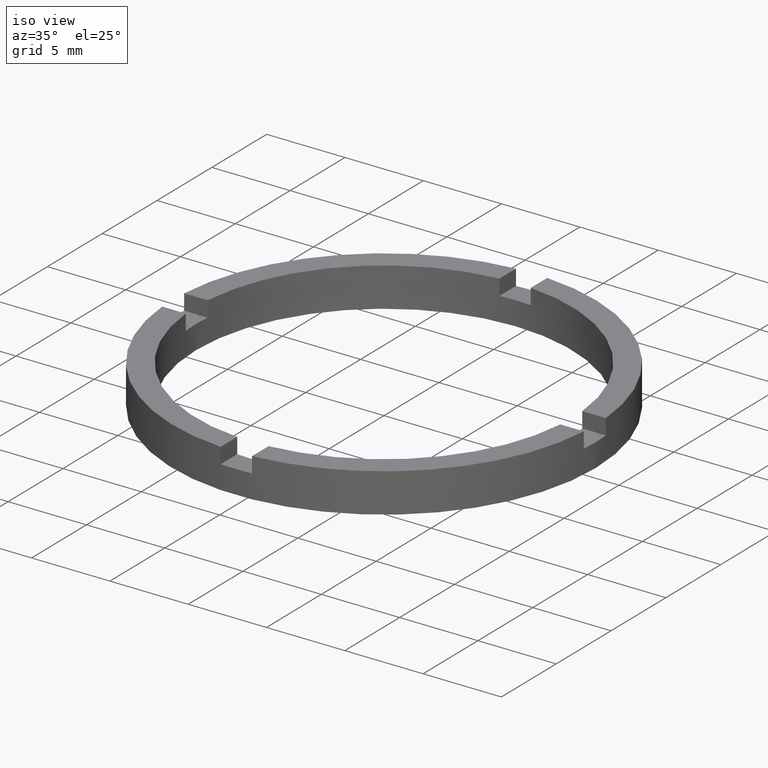
[diagram: clean part render]
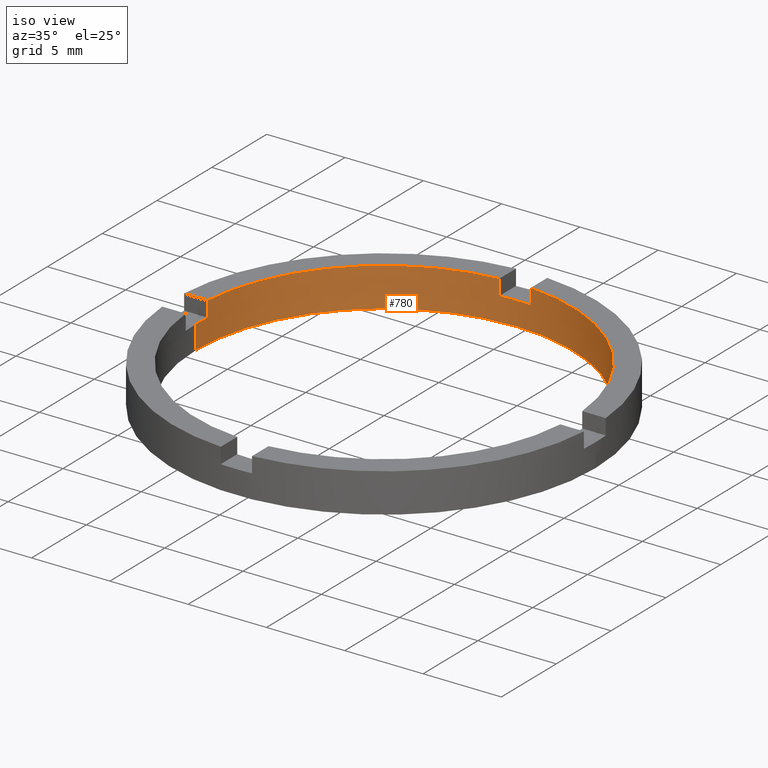
[diagram: same view with one face highlighted and labeled with its STEP entity id]
A machine part, iso view. The second image highlights one B-rep face of the part: STEP entity #780.
In plain terms, the highlighted cylindrical surface (partial cylindrical patch) has radius 12 mm, axis along (-0, -0, -1).
Its self-contained STEP definition (entity closure, byte-faithful):
#2 = VECTOR ( 'NONE', #219, 1000.000000000000000 ) ;
#30 = EDGE_CURVE ( 'NONE', #422, #682, #237, .T. ) ;
#31 = VECTOR ( 'NONE', #566, 1000.000000000000000 ) ;
#34 = CYLINDRICAL_SURFACE ( 'NONE', #294, 12.00000000000000178 ) ;
#36 = LINE ( 'NONE', #463, #307 ) ;
#74 = DIRECTION ( 'NONE',  ( 1.000000000000000000, 0.000000000000000000, 0.000000000000000000 ) ) ;
#95 = CARTESIAN_POINT ( 'NONE',  ( -1.000000000000024647, 11.95826074310139830, 2.500000000000000000 ) ) ;
#97 = CARTESIAN_POINT ( 'NONE',  ( 11.95826074310141429, 0.9999999999998402389, 1.500000000000000000 ) ) ;
#111 = EDGE_CURVE ( 'NONE', #434, #221, #696, .T. ) ;
#121 = VERTEX_POINT ( 'NONE', #257 ) ;
#125 = ORIENTED_EDGE ( 'NONE', *, *, #651, .F. ) ;
#138 = CARTESIAN_POINT ( 'NONE',  ( 0.9999999999999753530, 11.95826074310140363, 2.500000000000000000 ) ) ;
#140 = ORIENTED_EDGE ( 'NONE', *, *, #111, .F. ) ;
#145 = VERTEX_POINT ( 'NONE', #591 ) ;
#149 = ORIENTED_EDGE ( 'NONE', *, *, #429, .T. ) ;
#170 = ORIENTED_EDGE ( 'NONE', *, *, #30, .F. ) ;
#182 = VECTOR ( 'NONE', #344, 1000.000000000000000 ) ;
#185 = DIRECTION ( 'NONE',  ( 0.000000000000000000, -0.000000000000000000, 1.000000000000000000 ) ) ;
#192 = CARTESIAN_POINT ( 'NONE',  ( -1.000000000000024647, 11.95826074310139830, 2.500000000000000000 ) ) ;
#194 = DIRECTION ( 'NONE',  ( 0.000000000000000000, 0.000000000000000000, 1.000000000000000000 ) ) ;
#202 = AXIS2_PLACEMENT_3D ( 'NONE', #245, #301, #590 ) ;
#205 = CARTESIAN_POINT ( 'NONE',  ( -12.00000000000000178, 0.000000000000000000, 2.500000000000000000 ) ) ;
#210 = ORIENTED_EDGE ( 'NONE', *, *, #449, .T. ) ;
#219 = DIRECTION ( 'NONE',  ( -0.000000000000000000, -0.000000000000000000, -1.000000000000000000 ) ) ;
#221 = VERTEX_POINT ( 'NONE', #264 ) ;
#228 = DIRECTION ( 'NONE',  ( -0.000000000000000000, -0.000000000000000000, -1.000000000000000000 ) ) ;
#231 = ORIENTED_EDGE ( 'NONE', *, *, #281, .T. ) ;
#237 = LINE ( 'NONE', #503, #496 ) ;
#239 = VERTEX_POINT ( 'NONE', #521 ) ;
#245 = CARTESIAN_POINT ( 'NONE',  ( 0.000000000000000000, 0.000000000000000000, 1.500000000000000000 ) ) ;
#254 = CARTESIAN_POINT ( 'NONE',  ( 12.00000000000000178, 1.469576158976824144E-15, 1.500000000000000000 ) ) ;
#257 = CARTESIAN_POINT ( 'NONE',  ( 12.00000000000000178, 1.469576158976824144E-15, 0.000000000000000000 ) ) ;
#260 = CIRCLE ( 'NONE', #279, 12.00000000000000178 ) ;
#264 = CARTESIAN_POINT ( 'NONE',  ( -1.000000000000024647, 11.95826074310139830, 1.500000000000000000 ) ) ;
#265 = CIRCLE ( 'NONE', #202, 12.00000000000000178 ) ;
#278 = LINE ( 'NONE', #779, #535 ) ;
#279 = AXIS2_PLACEMENT_3D ( 'NONE', #770, #467, #74 ) ;
#281 = EDGE_CURVE ( 'NONE', #379, #393, #282, .T. ) ;
#282 = LINE ( 'NONE', #205, #2 ) ;
#290 = CARTESIAN_POINT ( 'NONE',  ( -12.00000000000000178, 0.000000000000000000, 0.000000000000000000 ) ) ;
#294 = AXIS2_PLACEMENT_3D ( 'NONE', #330, #228, #602 ) ;
#301 = DIRECTION ( 'NONE',  ( 0.000000000000000000, 0.000000000000000000, 1.000000000000000000 ) ) ;
#307 = VECTOR ( 'NONE', #502, 1000.000000000000000 ) ;
#310 = FACE_OUTER_BOUND ( 'NONE', #657, .T. ) ;
#330 = CARTESIAN_POINT ( 'NONE',  ( 0.000000000000000000, 0.000000000000000000, 2.500000000000000000 ) ) ;
#331 = EDGE_CURVE ( 'NONE', #239, #706, #278, .T. ) ;
#344 = DIRECTION ( 'NONE',  ( -0.000000000000000000, -0.000000000000000000, -1.000000000000000000 ) ) ;
#348 = DIRECTION ( 'NONE',  ( 1.000000000000000000, 0.000000000000000000, 0.000000000000000000 ) ) ;
#370 = CARTESIAN_POINT ( 'NONE',  ( 0.000000000000000000, 0.000000000000000000, 0.000000000000000000 ) ) ;
#379 = VERTEX_POINT ( 'NONE', #582 ) ;
#393 = VERTEX_POINT ( 'NONE', #290 ) ;
#399 = ORIENTED_EDGE ( 'NONE', *, *, #529, .T. ) ;
#405 = DIRECTION ( 'NONE',  ( 1.000000000000000000, 0.000000000000000000, 0.000000000000000000 ) ) ;
#408 = ORIENTED_EDGE ( 'NONE', *, *, #558, .T. ) ;
#422 = VERTEX_POINT ( 'NONE', #632 ) ;
#425 = VERTEX_POINT ( 'NONE', #97 ) ;
#429 = EDGE_CURVE ( 'NONE', #145, #706, #764, .T. ) ;
#434 = VERTEX_POINT ( 'NONE', #95 ) ;
#449 = EDGE_CURVE ( 'NONE', #239, #221, #771, .T. ) ;
#451 = VERTEX_POINT ( 'NONE', #254 ) ;
#463 = CARTESIAN_POINT ( 'NONE',  ( 12.00000000000000178, 1.469576158976824144E-15, 2.500000000000000000 ) ) ;
#467 = DIRECTION ( 'NONE',  ( 0.000000000000000000, 0.000000000000000000, 1.000000000000000000 ) ) ;
#476 = DIRECTION ( 'NONE',  ( 0.000000000000000000, 0.000000000000000000, 1.000000000000000000 ) ) ;
#478 = AXIS2_PLACEMENT_3D ( 'NONE', #643, #194, #348 ) ;
#496 = VECTOR ( 'NONE', #607, 1000.000000000000000 ) ;
#499 = DIRECTION ( 'NONE',  ( 0.000000000000000000, 0.000000000000000000, 1.000000000000000000 ) ) ;
#502 = DIRECTION ( 'NONE',  ( -0.000000000000000000, -0.000000000000000000, -1.000000000000000000 ) ) ;
#503 = CARTESIAN_POINT ( 'NONE',  ( -11.95826074310140186, 0.9999999999999776845, 2.500000000000000000 ) ) ;
#509 = CARTESIAN_POINT ( 'NONE',  ( 11.95826074310141429, 0.9999999999998402389, 2.500000000000000000 ) ) ;
#516 = CIRCLE ( 'NONE', #517, 12.00000000000000178 ) ;
#517 = AXIS2_PLACEMENT_3D ( 'NONE', #370, #476, #533 ) ;
#521 = CARTESIAN_POINT ( 'NONE',  ( 0.9999999999999753530, 11.95826074310140363, 1.500000000000000000 ) ) ;
#529 = EDGE_CURVE ( 'NONE', #434, #682, #260, .T. ) ;
#533 = DIRECTION ( 'NONE',  ( 1.000000000000000000, 0.000000000000000000, 0.000000000000000000 ) ) ;
#535 = VECTOR ( 'NONE', #699, 1000.000000000000000 ) ;
#543 = EDGE_CURVE ( 'NONE', #121, #393, #516, .T. ) ;
#546 = AXIS2_PLACEMENT_3D ( 'NONE', #730, #185, #405 ) ;
#554 = LINE ( 'NONE', #509, #31 ) ;
#558 = EDGE_CURVE ( 'NONE', #451, #425, #265, .T. ) ;
#566 = DIRECTION ( 'NONE',  ( -0.000000000000000000, -0.000000000000000000, -1.000000000000000000 ) ) ;
#567 = CIRCLE ( 'NONE', #783, 12.00000000000000178 ) ;
#582 = CARTESIAN_POINT ( 'NONE',  ( -12.00000000000000178, 0.000000000000000000, 1.500000000000000000 ) ) ;
#587 = EDGE_CURVE ( 'NONE', #422, #379, #567, .T. ) ;
#590 = DIRECTION ( 'NONE',  ( 1.000000000000000000, 0.000000000000000000, 0.000000000000000000 ) ) ;
#591 = CARTESIAN_POINT ( 'NONE',  ( 11.95826074310141429, 0.9999999999998402389, 2.500000000000000000 ) ) ;
#602 = DIRECTION ( 'NONE',  ( -1.000000000000000000, 0.000000000000000000, 0.000000000000000000 ) ) ;
#607 = DIRECTION ( 'NONE',  ( 0.000000000000000000, 0.000000000000000000, 1.000000000000000000 ) ) ;
#632 = CARTESIAN_POINT ( 'NONE',  ( -11.95826074310140186, 0.9999999999999776845, 1.500000000000000000 ) ) ;
#633 = DIRECTION ( 'NONE',  ( 1.000000000000000000, 0.000000000000000000, 0.000000000000000000 ) ) ;
#639 = ORIENTED_EDGE ( 'NONE', *, *, #587, .T. ) ;
#643 = CARTESIAN_POINT ( 'NONE',  ( 0.000000000000000000, 0.000000000000000000, 2.500000000000000000 ) ) ;
#651 = EDGE_CURVE ( 'NONE', #451, #121, #36, .T. ) ;
#657 = EDGE_LOOP ( 'NONE', ( #125, #408, #668, #149, #746, #210, #140, #399, #170, #639, #231, #743 ) ) ;
#658 = CARTESIAN_POINT ( 'NONE',  ( -11.95826074310140186, 0.9999999999999776845, 2.500000000000000000 ) ) ;
#668 = ORIENTED_EDGE ( 'NONE', *, *, #715, .F. ) ;
#682 = VERTEX_POINT ( 'NONE', #658 ) ;
#696 = LINE ( 'NONE', #192, #182 ) ;
#699 = DIRECTION ( 'NONE',  ( 0.000000000000000000, 0.000000000000000000, 1.000000000000000000 ) ) ;
#706 = VERTEX_POINT ( 'NONE', #138 ) ;
#715 = EDGE_CURVE ( 'NONE', #145, #425, #554, .T. ) ;
#726 = CARTESIAN_POINT ( 'NONE',  ( 0.000000000000000000, 0.000000000000000000, 1.500000000000000000 ) ) ;
#730 = CARTESIAN_POINT ( 'NONE',  ( 0.000000000000000000, 0.000000000000000000, 1.500000000000000000 ) ) ;
#743 = ORIENTED_EDGE ( 'NONE', *, *, #543, .F. ) ;
#746 = ORIENTED_EDGE ( 'NONE', *, *, #331, .F. ) ;
#764 = CIRCLE ( 'NONE', #478, 12.00000000000000178 ) ;
#770 = CARTESIAN_POINT ( 'NONE',  ( 0.000000000000000000, 0.000000000000000000, 2.500000000000000000 ) ) ;
#771 = CIRCLE ( 'NONE', #546, 12.00000000000000178 ) ;
#779 = CARTESIAN_POINT ( 'NONE',  ( 0.9999999999999753530, 11.95826074310140363, 2.500000000000000000 ) ) ;
#780 = ADVANCED_FACE ( 'NONE', ( #310 ), #34, .F. ) ;
#783 = AXIS2_PLACEMENT_3D ( 'NONE', #726, #499, #633 ) ;